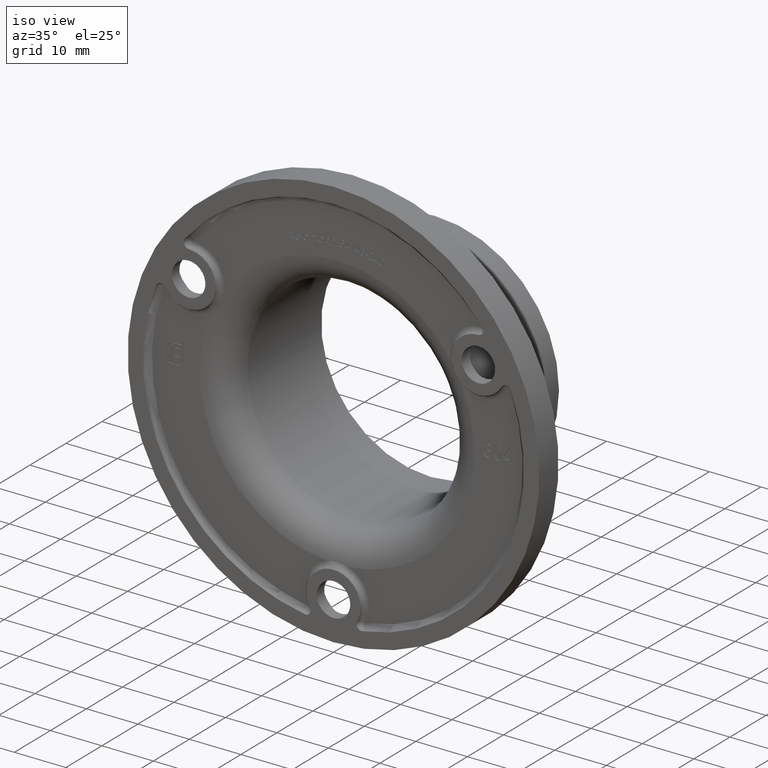
[diagram: clean part render]
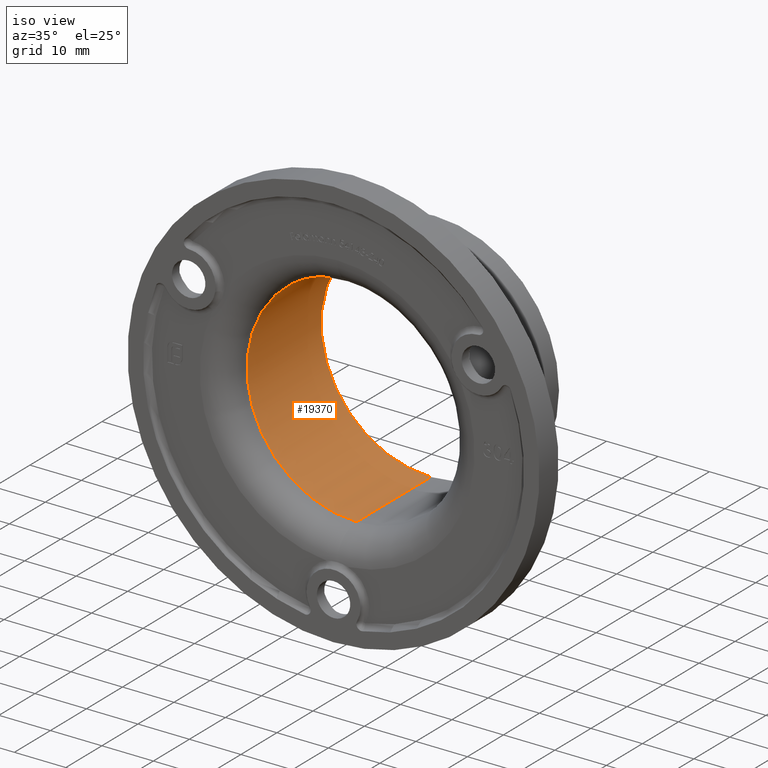
[diagram: same view with one face highlighted and labeled with its STEP entity id]
A machine part, iso view. The second image highlights one B-rep face of the part: STEP entity #19370.
In plain terms, the highlighted cylindrical surface (partial cylindrical patch) has radius 21.3 mm, axis along (-0, -1, -0).
Its self-contained STEP definition (entity closure, byte-faithful):
#235 = VERTEX_POINT ( 'NONE', #11636 ) ;
#729 = CARTESIAN_POINT ( 'NONE',  ( 2.608497682183862521E-15, 0.000000000000000000, 21.30000000000000071 ) ) ;
#775 = CARTESIAN_POINT ( 'NONE',  ( -1.386941444429306447, 16.41708758864206175, 21.25502408770236684 ) ) ;
#776 = DIRECTION ( 'NONE',  ( -0.000000000000000000, -1.000000000000000000, -0.000000000000000000 ) ) ;
#1046 = CARTESIAN_POINT ( 'NONE',  ( 0.000000000000000000, 6.399999999999997691, 0.000000000000000000 ) ) ;
#1176 = CARTESIAN_POINT ( 'NONE',  ( -1.678998828524496778, 19.29072967793186777, 21.23460932073956542 ) ) ;
#1226 = VERTEX_POINT ( 'NONE', #3761 ) ;
#2110 = EDGE_CURVE ( 'NONE', #5568, #6939, #2496, .T. ) ;
#2352 = AXIS2_PLACEMENT_3D ( 'NONE', #4104, #4381, #10515 ) ;
#2496 = B_SPLINE_CURVE_WITH_KNOTS ( 'NONE', 3,
 ( #8358, #13313, #5437, #13179, #3715, #13450, #11784, #10051, #775, #17932, #14775, #8556, #11720, #13247, #7184, #5300, #16349, #11585 ),
 .UNSPECIFIED., .F., .F.,
 ( 4, 2, 2, 2, 2, 2, 2, 2, 4 ),
 ( 0.003285532250312473302, 0.003696033732738232980, 0.004106535215163993092, 0.004517036697589752771, 0.004927538180015512449, 0.005338039662441272128, 0.005748541144867031806, 0.006159042627292792352, 0.006569544109718552030 ),
 .UNSPECIFIED. ) ;
#2505 = CYLINDRICAL_SURFACE ( 'NONE', #18329, 21.30000000000000071 ) ;
#2535 = EDGE_CURVE ( 'NONE', #1226, #6343, #3166, .T. ) ;
#2685 = CARTESIAN_POINT ( 'NONE',  ( 0.000000000000000000, 6.399999999999997691, -21.30000000000000426 ) ) ;
#2736 = CARTESIAN_POINT ( 'NONE',  ( -1.280565455278027898, 19.67002713022084137, 21.26177833076686241 ) ) ;
#2856 = CARTESIAN_POINT ( 'NONE',  ( 2.608497713741597352E-15, 15.90000000000001457, 21.30000000000000071 ) ) ;
#2956 = CARTESIAN_POINT ( 'NONE',  ( 2.608497682183784029E-15, 20.09999999999999076, 21.30000000000000071 ) ) ;
#3000 = FACE_OUTER_BOUND ( 'NONE', #10332, .T. ) ;
#3008 = DIRECTION ( 'NONE',  ( -0.000000000000000000, -1.000000000000000000, -0.000000000000000000 ) ) ;
#3166 = CIRCLE ( 'NONE', #2352, 21.30000000000000071 ) ;
#3198 = EDGE_CURVE ( 'NONE', #1226, #5777, #10294, .T. ) ;
#3236 = EDGE_CURVE ( 'NONE', #6343, #7116, #15244, .T. ) ;
#3715 = CARTESIAN_POINT ( 'NONE',  ( -0.6764594988083058036, 16.00717778557945792, 21.28963574798011393 ) ) ;
#3761 = CARTESIAN_POINT ( 'NONE',  ( 2.608497682183862521E-15, 26.99999999999999645, 21.30000000000000071 ) ) ;
#4025 = CIRCLE ( 'NONE', #15694, 21.30000000000000426 ) ;
#4104 = CARTESIAN_POINT ( 'NONE',  ( 0.000000000000000000, 26.99999999999999645, 0.000000000000000000 ) ) ;
#4259 = CARTESIAN_POINT ( 'NONE',  ( -2.044876685351190826, 18.55079096767370928, 21.20187582150219896 ) ) ;
#4381 = DIRECTION ( 'NONE',  ( -0.000000000000000000, -1.000000000000000000, -0.000000000000000000 ) ) ;
#4528 = ORIENTED_EDGE ( 'NONE', *, *, #2535, .F. ) ;
#4939 = CARTESIAN_POINT ( 'NONE',  ( 0.000000000000000000, 26.99999999999999645, -21.30000000000000071 ) ) ;
#5194 = ORIENTED_EDGE ( 'NONE', *, *, #3198, .T. ) ;
#5300 = CARTESIAN_POINT ( 'NONE',  ( -2.086265154257160415, 17.72370707561150738, 21.19759952941375403 ) ) ;
#5437 = CARTESIAN_POINT ( 'NONE',  ( -0.2762283414705508644, 15.91372264534721204, 21.29863465358074848 ) ) ;
#5568 = VERTEX_POINT ( 'NONE', #2856 ) ;
#5584 = CARTESIAN_POINT ( 'NONE',  ( 2.608497682183862521E-15, 0.000000000000000000, 21.30000000000000071 ) ) ;
#5718 = DIRECTION ( 'NONE',  ( -0.000000000000000000, -1.000000000000000000, -0.000000000000000000 ) ) ;
#5777 = VERTEX_POINT ( 'NONE', #2956 ) ;
#5914 = CARTESIAN_POINT ( 'NONE',  ( -0.6774121118731784019, 19.99250058202955671, 21.28960546332723780 ) ) ;
#6343 = VERTEX_POINT ( 'NONE', #4939 ) ;
#6939 = VERTEX_POINT ( 'NONE', #7054 ) ;
#7054 = CARTESIAN_POINT ( 'NONE',  ( -2.099999999999988098, 18.00000000000000355, 21.19622607918683244 ) ) ;
#7116 = VERTEX_POINT ( 'NONE', #2685 ) ;
#7184 = CARTESIAN_POINT ( 'NONE',  ( -2.032551213729104411, 17.45449506188931466, 21.20281735210767948 ) ) ;
#7531 = CARTESIAN_POINT ( 'NONE',  ( -0.5439051962316989730, 20.03295757434819890, 21.29347810609711189 ) ) ;
#8105 = EDGE_CURVE ( 'NONE', #6939, #5777, #12845, .T. ) ;
#8358 = CARTESIAN_POINT ( 'NONE',  ( 2.608497713741597352E-15, 15.90000000000001457, 21.30000000000000071 ) ) ;
#8556 = CARTESIAN_POINT ( 'NONE',  ( -1.821769950516963998, 16.94650476441380960, 21.22208682646210320 ) ) ;
#9025 = CARTESIAN_POINT ( 'NONE',  ( -1.835427369755197269, 19.05645526110542676, 21.22103356057489520 ) ) ;
#9092 = CARTESIAN_POINT ( 'NONE',  ( 2.608497682183784029E-15, 20.09999999999999076, 21.30000000000000071 ) ) ;
#9362 = ORIENTED_EDGE ( 'NONE', *, *, #8105, .F. ) ;
#10051 = CARTESIAN_POINT ( 'NONE',  ( -1.280932633506268292, 16.33029489697375425, 21.26175382349596177 ) ) ;
#10294 = LINE ( 'NONE', #729, #15509 ) ;
#10332 = EDGE_LOOP ( 'NONE', ( #4528, #5194, #9362, #17322, #19115, #20300, #16031 ) ) ;
#10515 = DIRECTION ( 'NONE',  ( 0.000000000000000000, 0.000000000000000000, -1.000000000000000000 ) ) ;
#10676 = LINE ( 'NONE', #5584, #11422 ) ;
#11422 = VECTOR ( 'NONE', #11659, 1000.000000000000000 ) ;
#11585 = CARTESIAN_POINT ( 'NONE',  ( -2.099999999999988098, 18.00000000000000355, 21.19622607918683244 ) ) ;
#11636 = CARTESIAN_POINT ( 'NONE',  ( 2.939152317953649078E-15, 6.399999999999997691, 21.30000000000000426 ) ) ;
#11659 = DIRECTION ( 'NONE',  ( -0.000000000000000000, -1.000000000000000000, -0.000000000000000000 ) ) ;
#11720 = CARTESIAN_POINT ( 'NONE',  ( -1.887516416621040083, 17.06928843146949148, 21.21626919267184874 ) ) ;
#11745 = DIRECTION ( 'NONE',  ( -0.000000000000000000, -1.000000000000000000, -0.000000000000000000 ) ) ;
#11784 = CARTESIAN_POINT ( 'NONE',  ( -1.053555144131327781, 16.17826316364640604, 21.27423290322827754 ) ) ;
#12845 = B_SPLINE_CURVE_WITH_KNOTS ( 'NONE', 3,
 ( #16679, #13726, #4259, #9025, #1176, #19860, #2736, #13788, #15373, #5914, #7531, #18550, #13577, #9092 ),
 .UNSPECIFIED., .F., .F.,
 ( 4, 2, 2, 2, 2, 2, 4 ),
 ( 0.006569544109718552030, 0.007390942280216888927, 0.008212340450715227558, 0.008623039535964395139, 0.009033738621213564454, 0.009444437706462732035, 0.009855136791711901351 ),
 .UNSPECIFIED. ) ;
#13179 = CARTESIAN_POINT ( 'NONE',  ( -0.5455493611384728547, 15.96745696435966266, 21.29343833432974620 ) ) ;
#13247 = CARTESIAN_POINT ( 'NONE',  ( -1.992843994780546302, 17.32360140502985857, 21.20663503461587496 ) ) ;
#13313 = CARTESIAN_POINT ( 'NONE',  ( -0.1370332232493860769, 15.90000000000001457, 21.29999999999999716 ) ) ;
#13450 = CARTESIAN_POINT ( 'NONE',  ( -0.9307403979460150412, 16.11249896862352315, 21.28003548039410120 ) ) ;
#13577 = CARTESIAN_POINT ( 'NONE',  ( -0.1388039383780915181, 20.09999999999999432, 21.30000000000000071 ) ) ;
#13726 = CARTESIAN_POINT ( 'NONE',  ( -2.099999999999987654, 18.27426457145960725, 21.19622607918682533 ) ) ;
#13788 = CARTESIAN_POINT ( 'NONE',  ( -1.052298160211835754, 19.82250022851572524, 21.27429750318288626 ) ) ;
#14775 = CARTESIAN_POINT ( 'NONE',  ( -1.669770484273462641, 16.71915477365196878, 21.23458691739380200 ) ) ;
#15244 = LINE ( 'NONE', #19662, #19938 ) ;
#15373 = CARTESIAN_POINT ( 'NONE',  ( -0.9316942949090307735, 19.88703245322770741, 21.27999374281579392 ) ) ;
#15509 = VECTOR ( 'NONE', #11745, 1000.000000000000000 ) ;
#15694 = AXIS2_PLACEMENT_3D ( 'NONE', #1046, #5718, #16757 ) ;
#16031 = ORIENTED_EDGE ( 'NONE', *, *, #3236, .F. ) ;
#16349 = CARTESIAN_POINT ( 'NONE',  ( -2.099999999999988098, 17.86293369378614315, 21.19622607918683244 ) ) ;
#16679 = CARTESIAN_POINT ( 'NONE',  ( -2.099999999999988098, 18.00000000000000355, 21.19622607918683244 ) ) ;
#16757 = DIRECTION ( 'NONE',  ( 0.000000000000000000, 0.000000000000000000, -1.000000000000000000 ) ) ;
#16952 = EDGE_CURVE ( 'NONE', #235, #7116, #4025, .T. ) ;
#17292 = CARTESIAN_POINT ( 'NONE',  ( 0.000000000000000000, 0.000000000000000000, 0.000000000000000000 ) ) ;
#17322 = ORIENTED_EDGE ( 'NONE', *, *, #2110, .F. ) ;
#17932 = CARTESIAN_POINT ( 'NONE',  ( -1.582988471158247368, 16.61314536721156543, 21.24132300585967315 ) ) ;
#18063 = EDGE_CURVE ( 'NONE', #5568, #235, #10676, .T. ) ;
#18329 = AXIS2_PLACEMENT_3D ( 'NONE', #17292, #3008, #20477 ) ;
#18550 = CARTESIAN_POINT ( 'NONE',  ( -0.2753085097293638817, 20.08637354902188932, 21.29864427473718536 ) ) ;
#19115 = ORIENTED_EDGE ( 'NONE', *, *, #18063, .T. ) ;
#19370 = ADVANCED_FACE ( 'NONE', ( #3000 ), #2505, .F. ) ;
#19662 = CARTESIAN_POINT ( 'NONE',  ( 0.000000000000000000, 0.000000000000000000, -21.30000000000000071 ) ) ;
#19860 = CARTESIAN_POINT ( 'NONE',  ( -1.388575913847989396, 19.58133234122412958, 21.25491177232071749 ) ) ;
#19938 = VECTOR ( 'NONE', #776, 1000.000000000000000 ) ;
#20300 = ORIENTED_EDGE ( 'NONE', *, *, #16952, .T. ) ;
#20477 = DIRECTION ( 'NONE',  ( 0.000000000000000000, 0.000000000000000000, -1.000000000000000000 ) ) ;